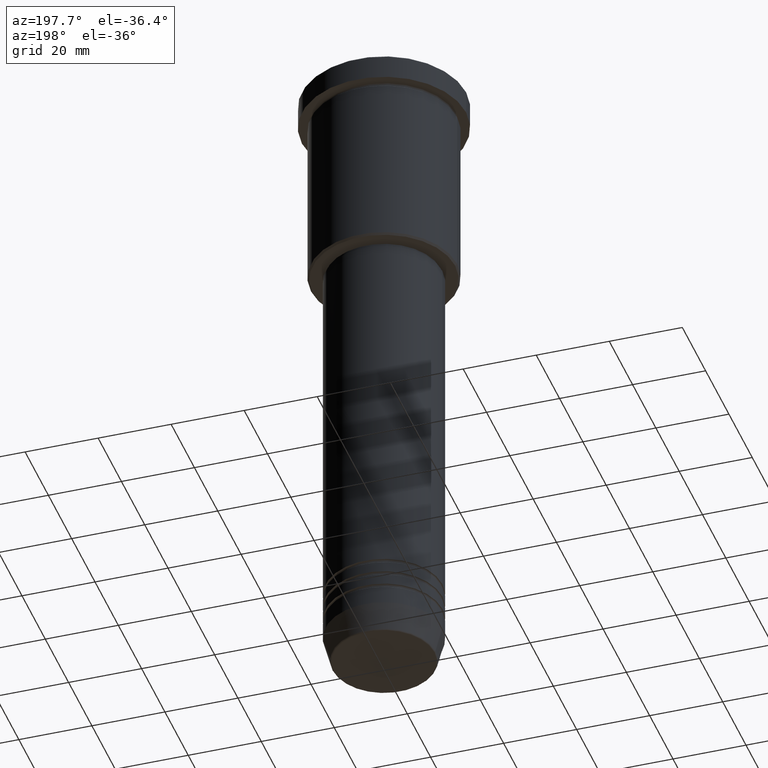
[diagram: clean part render]
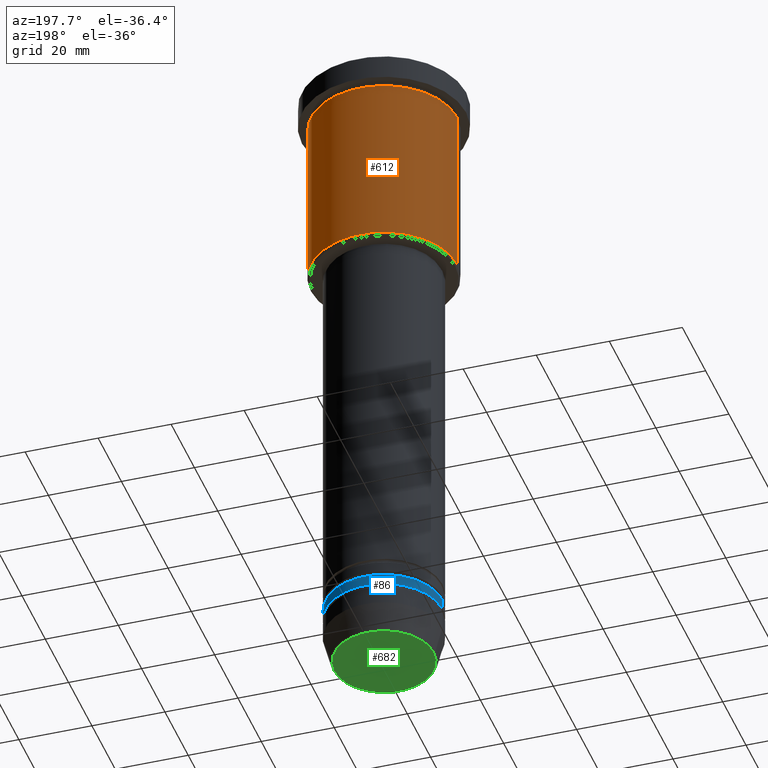
[diagram: same view with three faces highlighted in distinct colors, each labeled with its STEP entity id]
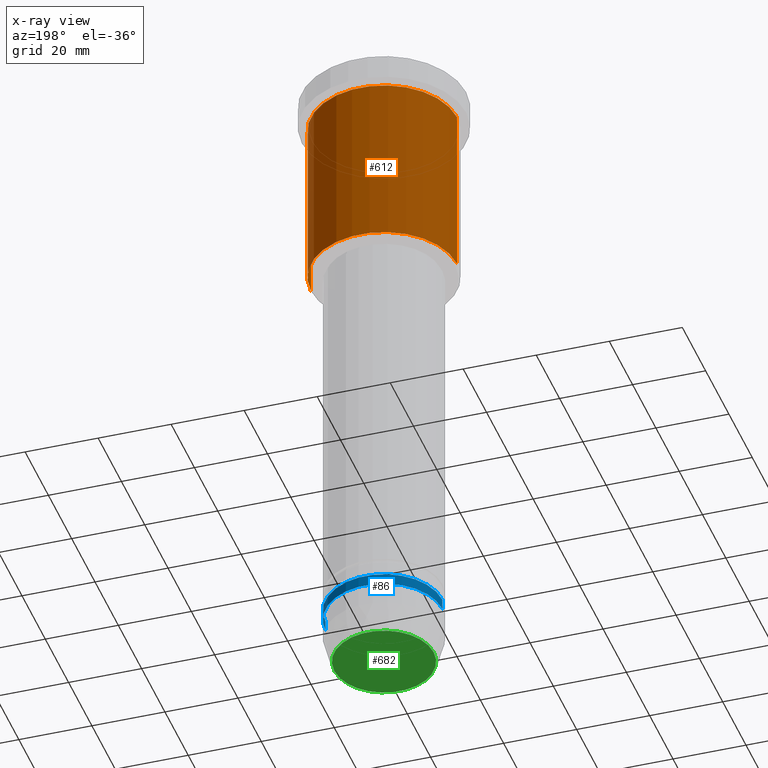
[diagram: x-ray of the same camera — body ghosted, the three highlighted faces saturated]
A machine part, auxiliary view with three faces highlighted in distinct colors.
The next image is the same camera in x-ray (body ghosted, the three faces saturated) — at least one of them is partly hidden behind the body in this view.
Their STEP definitions:

[orange] entity #612 — the highlighted cylindrical surface (partial cylindrical patch) has radius 20 mm, axis along (-0, -0, 1).
#3 = DIRECTION ( 'NONE',  ( 1.000000000000000000, 0.000000000000000000, 0.000000000000000000 ) ) ;
#23 = ORIENTED_EDGE ( 'NONE', *, *, #691, .T. ) ;
#42 = DIRECTION ( 'NONE',  ( -0.000000000000000000, -0.000000000000000000, 1.000000000000000000 ) ) ;
#54 = VERTEX_POINT ( 'NONE', #899 ) ;
#63 = VERTEX_POINT ( 'NONE', #979 ) ;
#102 = CARTESIAN_POINT ( 'NONE',  ( 0.000000000000000000, 0.000000000000000000, -55.49999999999998579 ) ) ;
#108 = EDGE_CURVE ( 'NONE', #971, #950, #743, .T. ) ;
#109 = CARTESIAN_POINT ( 'NONE',  ( 20.00000000000000355, 0.000000000000000000, 0.000000000000000000 ) ) ;
#255 = DIRECTION ( 'NONE',  ( -0.000000000000000000, -0.000000000000000000, 1.000000000000000000 ) ) ;
#266 = EDGE_CURVE ( 'NONE', #971, #54, #720, .T. ) ;
#328 = ORIENTED_EDGE ( 'NONE', *, *, #367, .F. ) ;
#362 = VECTOR ( 'NONE', #42, 1000.000000000000000 ) ;
#367 = EDGE_CURVE ( 'NONE', #950, #63, #986, .T. ) ;
#438 = AXIS2_PLACEMENT_3D ( 'NONE', #623, #907, #3 ) ;
#462 = EDGE_LOOP ( 'NONE', ( #942, #23, #328, #582 ) ) ;
#472 = CARTESIAN_POINT ( 'NONE',  ( 0.000000000000000000, 0.000000000000000000, -7.999999999999994671 ) ) ;
#479 = DIRECTION ( 'NONE',  ( 1.000000000000000000, 0.000000000000000000, 0.000000000000000000 ) ) ;
#565 = DIRECTION ( 'NONE',  ( -0.000000000000000000, -0.000000000000000000, 1.000000000000000000 ) ) ;
#582 = ORIENTED_EDGE ( 'NONE', *, *, #108, .F. ) ;
#612 = ADVANCED_FACE ( 'NONE', ( #1038 ), #945, .T. ) ;
#623 = CARTESIAN_POINT ( 'NONE',  ( 0.000000000000000000, 0.000000000000000000, 0.000000000000000000 ) ) ;
#651 = DIRECTION ( 'NONE',  ( -0.000000000000000000, -0.000000000000000000, 1.000000000000000000 ) ) ;
#681 = AXIS2_PLACEMENT_3D ( 'NONE', #102, #255, #1167 ) ;
#691 = EDGE_CURVE ( 'NONE', #54, #63, #758, .T. ) ;
#720 = CIRCLE ( 'NONE', #681, 20.00000000000000355 ) ;
#743 = LINE ( 'NONE', #109, #1003 ) ;
#758 = LINE ( 'NONE', #844, #362 ) ;
#844 = CARTESIAN_POINT ( 'NONE',  ( -20.00000000000000355, 2.449293598294706907E-15, 0.000000000000000000 ) ) ;
#848 = CARTESIAN_POINT ( 'NONE',  ( 20.00000000000000355, 0.000000000000000000, -55.49999999999998579 ) ) ;
#899 = CARTESIAN_POINT ( 'NONE',  ( -20.00000000000000355, 2.449293598294706907E-15, -55.49999999999998579 ) ) ;
#907 = DIRECTION ( 'NONE',  ( -0.000000000000000000, -0.000000000000000000, 1.000000000000000000 ) ) ;
#942 = ORIENTED_EDGE ( 'NONE', *, *, #266, .T. ) ;
#945 = CYLINDRICAL_SURFACE ( 'NONE', #438, 20.00000000000000355 ) ;
#950 = VERTEX_POINT ( 'NONE', #1039 ) ;
#971 = VERTEX_POINT ( 'NONE', #848 ) ;
#979 = CARTESIAN_POINT ( 'NONE',  ( -20.00000000000000000, 2.449293598294706513E-15, -7.999999999999994671 ) ) ;
#986 = CIRCLE ( 'NONE', #1006, 20.00000000000000000 ) ;
#1003 = VECTOR ( 'NONE', #651, 1000.000000000000000 ) ;
#1006 = AXIS2_PLACEMENT_3D ( 'NONE', #472, #565, #479 ) ;
#1038 = FACE_OUTER_BOUND ( 'NONE', #462, .T. ) ;
#1039 = CARTESIAN_POINT ( 'NONE',  ( 20.00000000000000000, 0.000000000000000000, -7.999999999999994671 ) ) ;
#1167 = DIRECTION ( 'NONE',  ( -1.000000000000000000, 0.000000000000000000, 0.000000000000000000 ) ) ;

[blue] entity #86 — the highlighted cylindrical surface (partial cylindrical patch) has radius 16 mm, axis along (-0, -0, 1).
#15 = ORIENTED_EDGE ( 'NONE', *, *, #349, .T. ) ;
#61 = DIRECTION ( 'NONE',  ( -0.000000000000000000, -0.000000000000000000, 1.000000000000000000 ) ) ;
#72 = ORIENTED_EDGE ( 'NONE', *, *, #357, .T. ) ;
#86 = ADVANCED_FACE ( 'NONE', ( #524 ), #666, .T. ) ;
#112 = LINE ( 'NONE', #203, #569 ) ;
#156 = VERTEX_POINT ( 'NONE', #762 ) ;
#203 = CARTESIAN_POINT ( 'NONE',  ( -16.00000000000000000, 1.959434878635765131E-15, 0.000000000000000000 ) ) ;
#208 = CIRCLE ( 'NONE', #322, 16.00000000000000000 ) ;
#272 = DIRECTION ( 'NONE',  ( 1.000000000000000000, 0.000000000000000000, 0.000000000000000000 ) ) ;
#287 = DIRECTION ( 'NONE',  ( -0.000000000000000000, -0.000000000000000000, 1.000000000000000000 ) ) ;
#293 = CARTESIAN_POINT ( 'NONE',  ( 16.00000000000000000, 0.000000000000000000, -163.5000000000000000 ) ) ;
#294 = CARTESIAN_POINT ( 'NONE',  ( 0.000000000000000000, 0.000000000000000000, 0.000000000000000000 ) ) ;
#322 = AXIS2_PLACEMENT_3D ( 'NONE', #732, #1093, #272 ) ;
#349 = EDGE_CURVE ( 'NONE', #875, #1095, #208, .T. ) ;
#353 = CARTESIAN_POINT ( 'NONE',  ( -16.00000000000000000, 1.959434878635765131E-15, -166.4999999999999716 ) ) ;
#357 = EDGE_CURVE ( 'NONE', #1095, #156, #112, .T. ) ;
#358 = CARTESIAN_POINT ( 'NONE',  ( 0.000000000000000000, 0.000000000000000000, -163.5000000000000000 ) ) ;
#377 = DIRECTION ( 'NONE',  ( 1.000000000000000000, 0.000000000000000000, 0.000000000000000000 ) ) ;
#413 = VERTEX_POINT ( 'NONE', #293 ) ;
#504 = LINE ( 'NONE', #596, #658 ) ;
#524 = FACE_OUTER_BOUND ( 'NONE', #1173, .T. ) ;
#569 = VECTOR ( 'NONE', #287, 1000.000000000000000 ) ;
#590 = CARTESIAN_POINT ( 'NONE',  ( 16.00000000000000000, 0.000000000000000000, -166.4999999999999716 ) ) ;
#596 = CARTESIAN_POINT ( 'NONE',  ( 16.00000000000000000, 0.000000000000000000, 0.000000000000000000 ) ) ;
#658 = VECTOR ( 'NONE', #61, 1000.000000000000000 ) ;
#666 = CYLINDRICAL_SURFACE ( 'NONE', #856, 16.00000000000000000 ) ;
#719 = DIRECTION ( 'NONE',  ( -0.000000000000000000, -0.000000000000000000, 1.000000000000000000 ) ) ;
#732 = CARTESIAN_POINT ( 'NONE',  ( 0.000000000000000000, 0.000000000000000000, -166.4999999999999716 ) ) ;
#762 = CARTESIAN_POINT ( 'NONE',  ( -16.00000000000000000, 1.959434878635765131E-15, -163.5000000000000000 ) ) ;
#818 = EDGE_CURVE ( 'NONE', #875, #413, #504, .T. ) ;
#830 = ORIENTED_EDGE ( 'NONE', *, *, #1155, .F. ) ;
#856 = AXIS2_PLACEMENT_3D ( 'NONE', #294, #859, #377 ) ;
#859 = DIRECTION ( 'NONE',  ( -0.000000000000000000, -0.000000000000000000, 1.000000000000000000 ) ) ;
#875 = VERTEX_POINT ( 'NONE', #590 ) ;
#985 = ORIENTED_EDGE ( 'NONE', *, *, #818, .F. ) ;
#1093 = DIRECTION ( 'NONE',  ( -0.000000000000000000, -0.000000000000000000, 1.000000000000000000 ) ) ;
#1095 = VERTEX_POINT ( 'NONE', #353 ) ;
#1105 = AXIS2_PLACEMENT_3D ( 'NONE', #358, #719, #1128 ) ;
#1126 = CIRCLE ( 'NONE', #1105, 16.00000000000000000 ) ;
#1128 = DIRECTION ( 'NONE',  ( 1.000000000000000000, 0.000000000000000000, 0.000000000000000000 ) ) ;
#1155 = EDGE_CURVE ( 'NONE', #413, #156, #1126, .T. ) ;
#1173 = EDGE_LOOP ( 'NONE', ( #15, #72, #830, #985 ) ) ;

[green] entity #682 — the highlighted planar face has unit normal (0, -0, 1).
#8 = EDGE_LOOP ( 'NONE', ( #432, #242 ) ) ;
#129 = CARTESIAN_POINT ( 'NONE',  ( -13.60671756277710109, 1.695915260300172047E-15, -180.0000000000000000 ) ) ;
#202 = EDGE_CURVE ( 'NONE', #976, #694, #669, .T. ) ;
#210 = CIRCLE ( 'NONE', #821, 13.60671756277710109 ) ;
#242 = ORIENTED_EDGE ( 'NONE', *, *, #1123, .T. ) ;
#297 = DIRECTION ( 'NONE',  ( 1.000000000000000000, 0.000000000000000000, 0.000000000000000000 ) ) ;
#356 = PLANE ( 'NONE',  #879 ) ;
#391 = CARTESIAN_POINT ( 'NONE',  ( 13.60671756277710109, 0.000000000000000000, -180.0000000000000000 ) ) ;
#432 = ORIENTED_EDGE ( 'NONE', *, *, #202, .T. ) ;
#518 = DIRECTION ( 'NONE',  ( 1.000000000000000000, 0.000000000000000000, 0.000000000000000000 ) ) ;
#523 = DIRECTION ( 'NONE',  ( 0.000000000000000000, 0.000000000000000000, -1.000000000000000000 ) ) ;
#650 = DIRECTION ( 'NONE',  ( 1.000000000000000000, 0.000000000000000000, 0.000000000000000000 ) ) ;
#669 = CIRCLE ( 'NONE', #827, 13.60671756277710109 ) ;
#682 = ADVANCED_FACE ( 'NONE', ( #1175 ), #356, .F. ) ;
#694 = VERTEX_POINT ( 'NONE', #129 ) ;
#776 = DIRECTION ( 'NONE',  ( 0.000000000000000000, -0.000000000000000000, 1.000000000000000000 ) ) ;
#790 = CARTESIAN_POINT ( 'NONE',  ( 0.000000000000000000, 0.000000000000000000, -180.0000000000000000 ) ) ;
#821 = AXIS2_PLACEMENT_3D ( 'NONE', #998, #523, #650 ) ;
#827 = AXIS2_PLACEMENT_3D ( 'NONE', #790, #1045, #518 ) ;
#879 = AXIS2_PLACEMENT_3D ( 'NONE', #943, #776, #297 ) ;
#943 = CARTESIAN_POINT ( 'NONE',  ( 0.000000000000000000, 0.000000000000000000, -180.0000000000000000 ) ) ;
#976 = VERTEX_POINT ( 'NONE', #391 ) ;
#998 = CARTESIAN_POINT ( 'NONE',  ( 0.000000000000000000, 0.000000000000000000, -180.0000000000000000 ) ) ;
#1045 = DIRECTION ( 'NONE',  ( 0.000000000000000000, 0.000000000000000000, -1.000000000000000000 ) ) ;
#1123 = EDGE_CURVE ( 'NONE', #694, #976, #210, .T. ) ;
#1175 = FACE_OUTER_BOUND ( 'NONE', #8, .T. ) ;